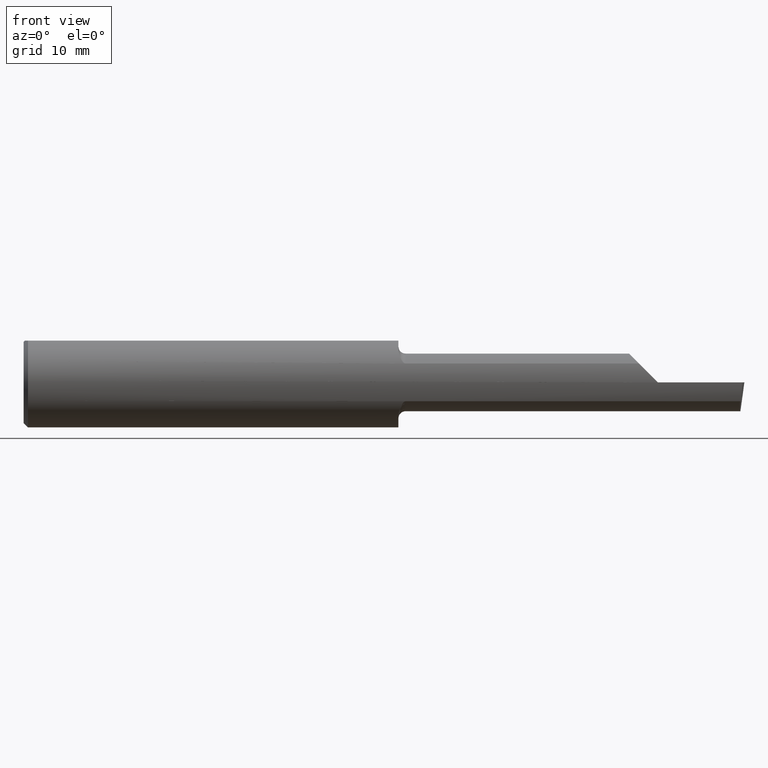
[diagram: clean part render]
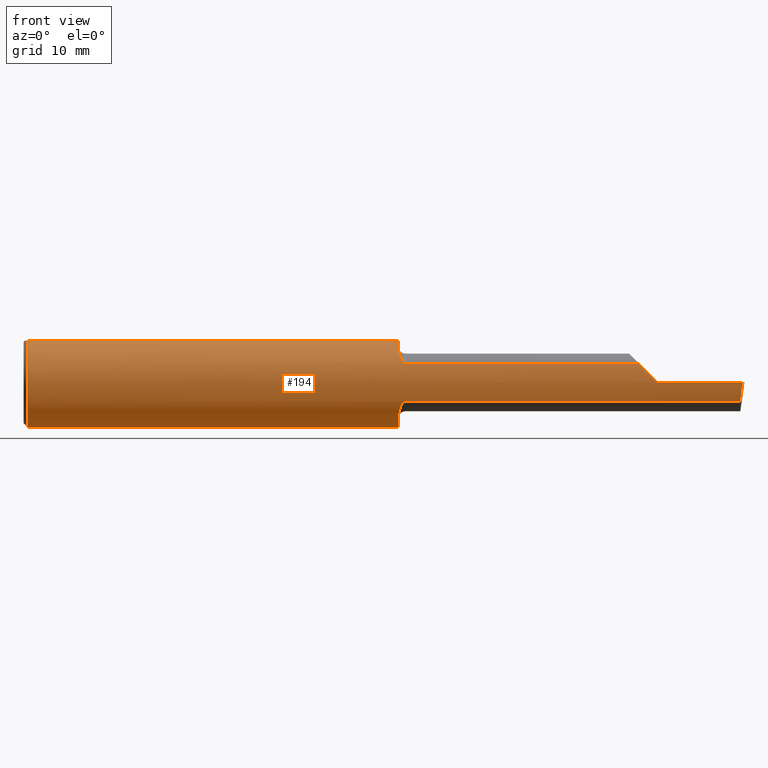
[diagram: same view with one face highlighted and labeled with its STEP entity id]
A machine part, front view. The second image highlights one B-rep face of the part: STEP entity #194.
In plain terms, the highlighted cylindrical surface (partial cylindrical patch) has radius 3.9649 mm, axis along (-1, -0, -0).
Its self-contained STEP definition (entity closure, byte-faithful):
#13 = EDGE_LOOP ( 'NONE', ( #922, #1156, #1208, #737, #351, #312, #960, #799, #611, #651, #577, #365, #31, #1001 ) ) ;
#30 = CARTESIAN_POINT ( 'NONE',  ( 33.02000000000001023, -1.462034237629201483, 3.685539999999999150 ) ) ;
#31 = ORIENTED_EDGE ( 'NONE', *, *, #803, .F. ) ;
#33 = EDGE_CURVE ( 'NONE', #695, #401, #1073, .T. ) ;
#39 = CARTESIAN_POINT ( 'NONE',  ( 33.61244100483411756, -3.599887049924355598, 1.661794942640912875 ) ) ;
#49 = CARTESIAN_POINT ( 'NONE',  ( 54.74300171423059425, -3.840973355998292149, 1.139538285769383430 ) ) ;
#52 = CARTESIAN_POINT ( 'NONE',  ( 33.65500000000000114, -3.599887049924355154, -1.661794942640913098 ) ) ;
#53 = CARTESIAN_POINT ( 'NONE',  ( 33.02000000000001023, 0.000000000000000000, 0.000000000000000000 ) ) ;
#60 = CARTESIAN_POINT ( 'NONE',  ( 33.57209333977407084, -3.593173028997538321, 1.676424154804801558 ) ) ;
#66 = CIRCLE ( 'NONE', #855, 3.964939999999999465 ) ;
#68 = CARTESIAN_POINT ( 'NONE',  ( 33.39226220547250534, -3.517214224323105043, 1.831405522215773685 ) ) ;
#71 = DIRECTION ( 'NONE',  ( 1.000000000000000000, -0.000000000000000000, -0.000000000000000000 ) ) ;
#79 = EDGE_CURVE ( 'NONE', #584, #774, #496, .T. ) ;
#105 = CARTESIAN_POINT ( 'NONE',  ( 0.3809999999999924558, -1.462034237629201039, 3.685539999999999150 ) ) ;
#112 = CARTESIAN_POINT ( 'NONE',  ( 33.47331072668534091, -3.560555847044618361, -1.744768704123047520 ) ) ;
#120 = DIRECTION ( 'NONE',  ( 0.000000000000000000, 0.000000000000000000, 1.000000000000000000 ) ) ;
#128 = CIRCLE ( 'NONE', #225, 3.964939999999999465 ) ;
#129 = CIRCLE ( 'NONE', #875, 3.964939999999999465 ) ;
#136 = DIRECTION ( 'NONE',  ( 0.000000000000000000, 0.000000000000000000, -1.000000000000000000 ) ) ;
#138 = CARTESIAN_POINT ( 'NONE',  ( 55.30478309583587304, -3.964570693771735765, 0.5777569041641154035 ) ) ;
#142 = CARTESIAN_POINT ( 'NONE',  ( 0.3809999999999924558, 1.462034237629201039, 3.685539999999999150 ) ) ;
#144 = DIRECTION ( 'NONE',  ( 0.000000000000000000, 0.000000000000000000, -1.000000000000000000 ) ) ;
#151 = CARTESIAN_POINT ( 'NONE',  ( 33.50257322604090149, -3.573254725572614809, 1.718470549442532302 ) ) ;
#154 = CARTESIAN_POINT ( 'NONE',  ( 63.34737096957299229, -3.964939999999998577, -1.734723475976807094E-15 ) ) ;
#163 = CARTESIAN_POINT ( 'NONE',  ( 55.88000000000000256, -3.964939186418879213, 0.002539999999978843903 ) ) ;
#194 = ADVANCED_FACE ( 'NONE', ( #1243 ), #647, .T. ) ;
#201 = EDGE_CURVE ( 'NONE', #324, #660, #657, .T. ) ;
#204 = VECTOR ( 'NONE', #363, 1000.000000000000000 ) ;
#225 = AXIS2_PLACEMENT_3D ( 'NONE', #843, #1223, #752 ) ;
#229 = VERTEX_POINT ( 'NONE', #279 ) ;
#240 = CARTESIAN_POINT ( 'NONE',  ( 33.07234523350260247, -2.993776095290413330, 2.604749827684865071 ) ) ;
#247 = CARTESIAN_POINT ( 'NONE',  ( 54.22074505735906769, -3.599887049924353821, 1.661794942640917094 ) ) ;
#273 = EDGE_CURVE ( 'NONE', #584, #401, #793, .T. ) ;
#279 = CARTESIAN_POINT ( 'NONE',  ( 55.88000000000000256, -3.964939999999999465, -8.673617379884035472E-16 ) ) ;
#284 = CARTESIAN_POINT ( 'NONE',  ( 33.57223186210840993, -3.593202679785876708, -1.676360523546626569 ) ) ;
#294 = CARTESIAN_POINT ( 'NONE',  ( 55.88000000000000256, -3.964939186418879213, 0.002539999999978843903 ) ) ;
#295 = EDGE_CURVE ( 'NONE', #398, #977, #1083, .T. ) ;
#311 = EDGE_CURVE ( 'NONE', #1084, #750, #66, .T. ) ;
#312 = ORIENTED_EDGE ( 'NONE', *, *, #273, .F. ) ;
#321 = CARTESIAN_POINT ( 'NONE',  ( 44.83100000000000307, -3.599887049924355154, -1.661794942640913098 ) ) ;
#324 = VERTEX_POINT ( 'NONE', #30 ) ;
#329 = VECTOR ( 'NONE', #903, 1000.000000000000000 ) ;
#335 = CARTESIAN_POINT ( 'NONE',  ( 63.22088425362750996, -3.841336638864744746, -1.138751319066783063 ) ) ;
#343 = DIRECTION ( 'NONE',  ( 1.000000000000000000, 0.000000000000000000, 0.000000000000000000 ) ) ;
#347 = CARTESIAN_POINT ( 'NONE',  ( 0.3809999999999924558, 0.000000000000000000, 0.000000000000000000 ) ) ;
#351 = ORIENTED_EDGE ( 'NONE', *, *, #33, .T. ) ;
#363 = DIRECTION ( 'NONE',  ( -1.000000000000000000, -0.000000000000000000, -0.000000000000000000 ) ) ;
#365 = ORIENTED_EDGE ( 'NONE', *, *, #1194, .T. ) ;
#398 = VERTEX_POINT ( 'NONE', #992 ) ;
#400 = CARTESIAN_POINT ( 'NONE',  ( 33.24048060739426091, -3.373116484278351646, -2.089258773282957726 ) ) ;
#401 = VERTEX_POINT ( 'NONE', #421 ) ;
#421 = CARTESIAN_POINT ( 'NONE',  ( 54.22074505735906769, -3.599887049924353821, 1.661794942640917094 ) ) ;
#434 = CARTESIAN_POINT ( 'NONE',  ( 33.02000000000001023, -2.519138184568832983, 3.061811883615197072 ) ) ;
#445 = CARTESIAN_POINT ( 'NONE',  ( 63.34737096957299229, -3.964939999999998577, -1.734723475976807094E-15 ) ) ;
#454 = CARTESIAN_POINT ( 'NONE',  ( 33.03086488926297193, -2.769437744535204970, 2.842117441750147577 ) ) ;
#462 = CARTESIAN_POINT ( 'NONE',  ( 63.50000000000000000, 0.000000000000000000, 0.000000000000000000 ) ) ;
#474 = CARTESIAN_POINT ( 'NONE',  ( 33.35080737346494573, -3.483507757590340592, -1.895116055831527202 ) ) ;
#496 = B_SPLINE_CURVE_WITH_KNOTS ( 'NONE', 3,
 ( #725, #39, #60, #151, #1195, #68, #524, #733, #1117, #925, #240, #454, #1188, #637 ),
 .UNSPECIFIED., .F., .F.,
 ( 4, 2, 2, 2, 2, 2, 4 ),
 ( 0.000000000000000000, 0.0001252016961403249059, 0.0002504033922806498118, 0.0005008067845612987562, 0.001001613569122605319, 0.001502420353683911773, 0.002003227138245218010 ),
 .UNSPECIFIED. ) ;
#497 = CARTESIAN_POINT ( 'NONE',  ( 33.05986463659906605, -3.000605534502818639, -2.611659286570838567 ) ) ;
#498 = EDGE_CURVE ( 'NONE', #324, #774, #1232, .T. ) ;
#501 = DIRECTION ( 'NONE',  ( -1.000000000000000000, -0.000000000000000000, -0.000000000000000000 ) ) ;
#518 = CARTESIAN_POINT ( 'NONE',  ( 33.02000000000001023, 0.000000000000000000, 0.000000000000000000 ) ) ;
#524 = CARTESIAN_POINT ( 'NONE',  ( 33.35013817098802491, -3.482913605042309069, 1.896197172601131964 ) ) ;
#531 = VECTOR ( 'NONE', #343, 1000.000000000000000 ) ;
#571 = DIRECTION ( 'NONE',  ( 1.000000000000000000, 0.000000000000000000, 0.000000000000000000 ) ) ;
#573 = EDGE_CURVE ( 'NONE', #229, #695, #128, .T. ) ;
#577 = ORIENTED_EDGE ( 'NONE', *, *, #311, .T. ) ;
#584 = VERTEX_POINT ( 'NONE', #1134 ) ;
#594 = CARTESIAN_POINT ( 'NONE',  ( 33.18735470549299293, -3.287133544512903516, -2.222929241776083753 ) ) ;
#601 = EDGE_CURVE ( 'NONE', #1021, #977, #1045, .T. ) ;
#611 = ORIENTED_EDGE ( 'NONE', *, *, #201, .T. ) ;
#637 = CARTESIAN_POINT ( 'NONE',  ( 33.02000000000001023, -2.519138184568832983, 3.061811883615197072 ) ) ;
#645 = CARTESIAN_POINT ( 'NONE',  ( 0.3809999999999924558, 0.000000000000000000, -3.964939999999999465 ) ) ;
#647 = CYLINDRICAL_SURFACE ( 'NONE', #908, 3.964939999999999465 ) ;
#651 = ORIENTED_EDGE ( 'NONE', *, *, #961, .T. ) ;
#657 = LINE ( 'NONE', #839, #204 ) ;
#660 = VERTEX_POINT ( 'NONE', #105 ) ;
#668 = CARTESIAN_POINT ( 'NONE',  ( 33.39270401922564702, -3.517563494622021114, -1.830738248287720138 ) ) ;
#674 = VECTOR ( 'NONE', #501, 1000.000000000000000 ) ;
#686 = CARTESIAN_POINT ( 'NONE',  ( 33.61273214518531915, -3.599887049924846316, -1.661794942640280492 ) ) ;
#695 = VERTEX_POINT ( 'NONE', #294 ) ;
#699 = DIRECTION ( 'NONE',  ( 1.000000000000000000, 0.000000000000000000, 0.000000000000000000 ) ) ;
#704 = CARTESIAN_POINT ( 'NONE',  ( 63.50000000000000000, -3.964939999999998577, -8.673617379884035472E-16 ) ) ;
#725 = CARTESIAN_POINT ( 'NONE',  ( 33.65500000000000114, -3.599887049924355154, 1.661794942640912653 ) ) ;
#733 = CARTESIAN_POINT ( 'NONE',  ( 33.24039366075621160, -3.372877125526301256, 2.089606631779968193 ) ) ;
#737 = ORIENTED_EDGE ( 'NONE', *, *, #573, .T. ) ;
#750 = VERTEX_POINT ( 'NONE', #142 ) ;
#752 = DIRECTION ( 'NONE',  ( 0.000000000000000000, 0.000000000000000000, 1.000000000000000000 ) ) ;
#759 = VERTEX_POINT ( 'NONE', #1087 ) ;
#774 = VERTEX_POINT ( 'NONE', #434 ) ;
#793 = LINE ( 'NONE', #1199, #531 ) ;
#799 = ORIENTED_EDGE ( 'NONE', *, *, #498, .F. ) ;
#803 = EDGE_CURVE ( 'NONE', #1021, #759, #889, .T. ) ;
#811 = VECTOR ( 'NONE', #571, 1000.000000000000000 ) ;
#816 = CARTESIAN_POINT ( 'NONE',  ( 0.3809999999999924558, 0.000000000000000000, 0.000000000000000000 ) ) ;
#828 = CARTESIAN_POINT ( 'NONE',  ( 33.02000000000001023, -2.519138184568832983, -3.061811883615197072 ) ) ;
#836 = EDGE_CURVE ( 'NONE', #1015, #229, #1181, .T. ) ;
#839 = CARTESIAN_POINT ( 'NONE',  ( 63.50000000000000000, -1.462034237629201039, 3.685539999999999150 ) ) ;
#843 = CARTESIAN_POINT ( 'NONE',  ( 55.88000000000000256, 0.000000000000000000, 0.000000000000000000 ) ) ;
#855 = AXIS2_PLACEMENT_3D ( 'NONE', #816, #986, #144 ) ;
#874 = AXIS2_PLACEMENT_3D ( 'NONE', #518, #699, #136 ) ;
#875 = AXIS2_PLACEMENT_3D ( 'NONE', #347, #71, #923 ) ;
#889 = CIRCLE ( 'NONE', #874, 3.964939999999999465 ) ;
#899 = EDGE_CURVE ( 'NONE', #398, #1015, #1053, .T. ) ;
#903 = DIRECTION ( 'NONE',  ( -1.000000000000000000, -0.000000000000000000, -0.000000000000000000 ) ) ;
#908 = AXIS2_PLACEMENT_3D ( 'NONE', #462, #973, #120 ) ;
#922 = ORIENTED_EDGE ( 'NONE', *, *, #295, .F. ) ;
#923 = DIRECTION ( 'NONE',  ( 0.000000000000000000, 0.000000000000000000, -1.000000000000000000 ) ) ;
#925 = CARTESIAN_POINT ( 'NONE',  ( 33.10278457167213162, -3.097160976341655214, 2.480706191382078263 ) ) ;
#930 = AXIS2_PLACEMENT_3D ( 'NONE', #53, #1011, #1112 ) ;
#960 = ORIENTED_EDGE ( 'NONE', *, *, #79, .T. ) ;
#961 = EDGE_CURVE ( 'NONE', #660, #1084, #129, .T. ) ;
#963 = CARTESIAN_POINT ( 'NONE',  ( 33.02000000000001734, -2.776463605467542450, -2.850094665743279077 ) ) ;
#968 = CARTESIAN_POINT ( 'NONE',  ( 33.50266131581566498, -3.573289969088939255, -1.718397189166197547 ) ) ;
#973 = DIRECTION ( 'NONE',  ( -1.000000000000000000, -0.000000000000000000, -0.000000000000000000 ) ) ;
#977 = VERTEX_POINT ( 'NONE', #52 ) ;
#986 = DIRECTION ( 'NONE',  ( 1.000000000000000000, -0.000000000000000000, -0.000000000000000000 ) ) ;
#992 = CARTESIAN_POINT ( 'NONE',  ( 63.16765444560877540, -3.599887049924355598, -1.661794942640913542 ) ) ;
#996 = CARTESIAN_POINT ( 'NONE',  ( 63.16765444560877540, -3.599887049924355598, -1.661794942640913542 ) ) ;
#1001 = ORIENTED_EDGE ( 'NONE', *, *, #601, .T. ) ;
#1011 = DIRECTION ( 'NONE',  ( 1.000000000000000000, 0.000000000000000000, 0.000000000000000000 ) ) ;
#1015 = VERTEX_POINT ( 'NONE', #445 ) ;
#1016 = CARTESIAN_POINT ( 'NONE',  ( 63.28173451222403401, -3.964939999999998577, -0.5760837926561074296 ) ) ;
#1021 = VERTEX_POINT ( 'NONE', #828 ) ;
#1038 = CARTESIAN_POINT ( 'NONE',  ( 33.65500000000000114, -3.599887049924355154, -1.661794942640913098 ) ) ;
#1045 = B_SPLINE_CURVE_WITH_KNOTS ( 'NONE', 3,
 ( #1152, #963, #497, #594, #400, #474, #668, #112, #968, #284, #686, #1038 ),
 .UNSPECIFIED., .F., .F.,
 ( 4, 2, 2, 2, 2, 4 ),
 ( 0.000000000000000000, 0.0009854161110805809577, 0.001478124166620873496, 0.001724478194391019766, 0.001847655208276093117, 0.001970832222161166252 ),
 .UNSPECIFIED. ) ;
#1053 =( BOUNDED_CURVE ( )  B_SPLINE_CURVE ( 3, ( #996, #335, #1016, #154 ),
 .UNSPECIFIED., .F., .F. ) 
 B_SPLINE_CURVE_WITH_KNOTS ( ( 4, 4 ),
 ( 0.9109982351287744251, 1.343476681901648373 ),
 .UNSPECIFIED. ) 
 CURVE ( )  GEOMETRIC_REPRESENTATION_ITEM ( )  RATIONAL_B_SPLINE_CURVE ( ( 1.000000000000000000, 0.9844741726620818145, 0.9844741726620818145, 1.000000000000000000 ) ) 
 REPRESENTATION_ITEM ( '' )  );
#1073 =( BOUNDED_CURVE ( )  B_SPLINE_CURVE ( 3, ( #163, #138, #49, #247 ),
 .UNSPECIFIED., .F., .T. ) 
 B_SPLINE_CURVE_WITH_KNOTS ( ( 4, 4 ),
 ( 4.713029595418891660, 5.144867427157565842 ),
 .UNSPECIFIED. ) 
 CURVE ( )  GEOMETRIC_REPRESENTATION_ITEM ( )  RATIONAL_B_SPLINE_CURVE ( ( 1.000000000000000000, 0.9845199556095911575, 0.9845199556095911575, 1.000000000000000000 ) ) 
 REPRESENTATION_ITEM ( '' )  );
#1083 = LINE ( 'NONE', #321, #329 ) ;
#1084 = VERTEX_POINT ( 'NONE', #645 ) ;
#1087 = CARTESIAN_POINT ( 'NONE',  ( 33.02000000000001023, 1.462034237629201039, 3.685539999999999150 ) ) ;
#1112 = DIRECTION ( 'NONE',  ( 0.000000000000000000, 0.000000000000000000, -1.000000000000000000 ) ) ;
#1117 = CARTESIAN_POINT ( 'NONE',  ( 33.18726499476741054, -3.286836667701075854, 2.223289014318798440 ) ) ;
#1134 = CARTESIAN_POINT ( 'NONE',  ( 33.65500000000000114, -3.599887049924355154, 1.661794942640912653 ) ) ;
#1151 = LINE ( 'NONE', #1230, #811 ) ;
#1152 = CARTESIAN_POINT ( 'NONE',  ( 33.02000000000001023, -2.519138184568832983, -3.061811883615197072 ) ) ;
#1156 = ORIENTED_EDGE ( 'NONE', *, *, #899, .T. ) ;
#1181 = LINE ( 'NONE', #704, #674 ) ;
#1188 = CARTESIAN_POINT ( 'NONE',  ( 33.02000000000000313, -2.647704699856521238, 2.956032420268234873 ) ) ;
#1194 = EDGE_CURVE ( 'NONE', #750, #759, #1151, .T. ) ;
#1195 = CARTESIAN_POINT ( 'NONE',  ( 33.47245480245961602, -3.560155007699746132, 1.745585502201546735 ) ) ;
#1199 = CARTESIAN_POINT ( 'NONE',  ( 44.83100000000000307, -3.599887049924355154, 1.661794942640912653 ) ) ;
#1208 = ORIENTED_EDGE ( 'NONE', *, *, #836, .T. ) ;
#1223 = DIRECTION ( 'NONE',  ( -1.000000000000000000, -0.000000000000000000, -0.000000000000000000 ) ) ;
#1230 = CARTESIAN_POINT ( 'NONE',  ( 63.50000000000000000, 1.462034237629201039, 3.685539999999999150 ) ) ;
#1232 = CIRCLE ( 'NONE', #930, 3.964939999999999465 ) ;
#1243 = FACE_OUTER_BOUND ( 'NONE', #13, .T. ) ;